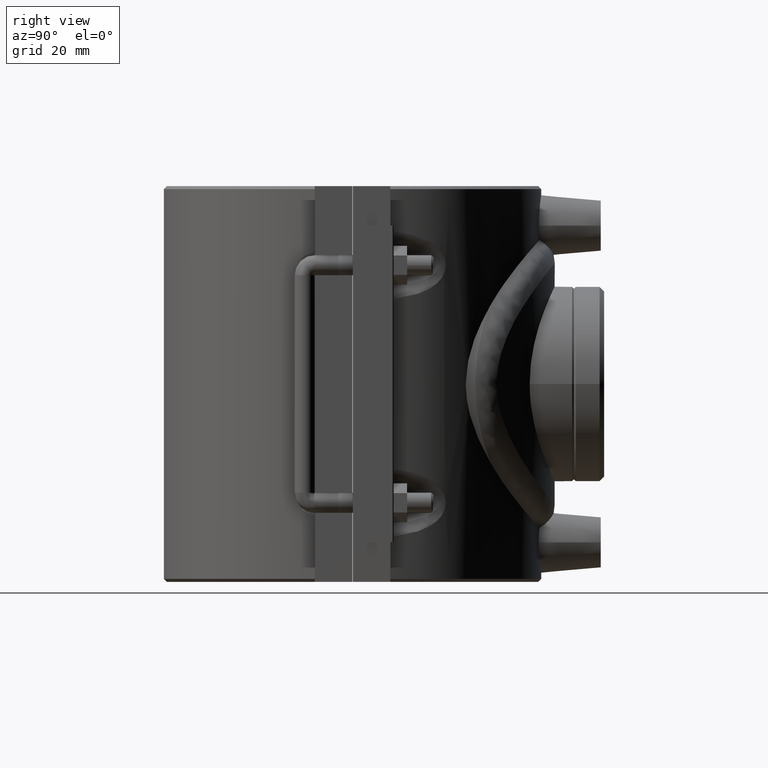
[diagram: clean part render]
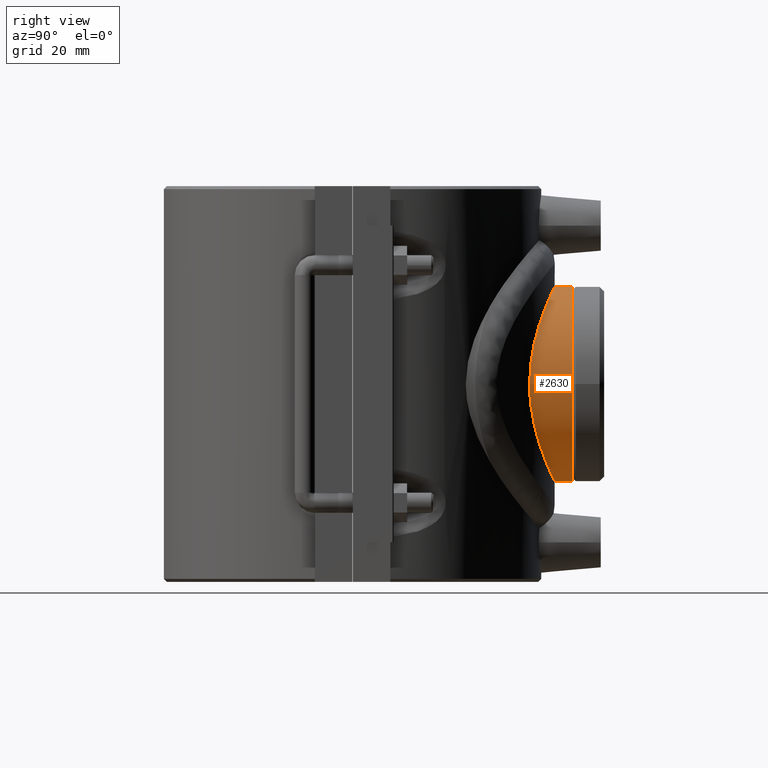
[diagram: same view with one face highlighted and labeled with its STEP entity id]
A machine part, right view. The second image highlights one B-rep face of the part: STEP entity #2630.
In plain terms, the highlighted cylindrical surface (bore or boss wall) has radius 29.1492 mm, axis along (0, -1, 0).
Its self-contained STEP definition (entity closure, byte-faithful):
#88=CYLINDRICAL_SURFACE('',#2851,29.14925);
#137=FACE_BOUND('',#524,.T.);
#210=B_SPLINE_CURVE_WITH_KNOTS('',3,(#5490,#5491,#5492,#5493,#5494,#5495,
#5496,#5497,#5498,#5499,#5500,#5501,#5502,#5503,#5504,#5505,#5506,#5507,
#5508,#5509,#5510,#5511,#5512,#5513,#5514,#5515,#5516,#5517,#5518,#5519,
#5520,#5521,#5522,#5523,#5524,#5525,#5526,#5527,#5528,#5529,#5530,#5531,
#5532,#5533,#5534,#5535,#5536,#5537,#5538,#5539,#5540,#5541,#5542,#5543,
#5544,#5545,#5546,#5547,#5548,#5549,#5550,#5551,#5552,#5553,#5554,#5555),
 .UNSPECIFIED.,.T.,.F.,(4,2,2,2,2,2,2,2,2,2,2,2,2,2,2,2,2,2,2,2,2,2,2,2,
2,2,2,2,2,2,2,2,4),(0.,0.560052998741934,1.12010599748387,1.6801589962258,
2.24021199496774,2.79895552299949,3.35769905103125,3.916442579063,4.47518610709475,
5.03392963512651,5.59267316315826,6.15141669119002,6.71016021922177,7.27021321796371,
7.83026621670564,8.39031921544758,8.95037221418951,9.51042521293144,10.0704782116734,
10.6305312104153,11.1905842091572,11.749327737189,12.3080712652208,12.8668147932525,
13.4255583212843,13.984301849316,14.5430453773478,15.1017889053795,15.6605324334113,
16.2205854321532,16.7806384308952,17.3406914296371,17.900744428379),
 .UNSPECIFIED.);
#331=FACE_OUTER_BOUND('',#523,.T.);
#523=EDGE_LOOP('',(#2271));
#524=EDGE_LOOP('',(#2272));
#1049=CIRCLE('',#2850,29.14925);
#1297=VERTEX_POINT('',#5486);
#1298=VERTEX_POINT('',#5489);
#1645=EDGE_CURVE('',#1297,#1297,#1049,.T.);
#1646=EDGE_CURVE('',#1298,#1298,#210,.T.);
#2271=ORIENTED_EDGE('',*,*,#1646,.F.);
#2272=ORIENTED_EDGE('',*,*,#1645,.F.);
#2630=ADVANCED_FACE('',(#331,#137),#88,.T.);
#2850=AXIS2_PLACEMENT_3D('',#5487,#3439,#3440);
#2851=AXIS2_PLACEMENT_3D('',#5488,#3441,#3442);
#3439=DIRECTION('center_axis',(0.,1.,0.));
#3440=DIRECTION('ref_axis',(-1.,0.,0.));
#3441=DIRECTION('center_axis',(0.,-1.,0.));
#3442=DIRECTION('ref_axis',(1.,0.,0.));
#5486=CARTESIAN_POINT('',(29.14925,65.45,-3.5697535710046E-15));
#5487=CARTESIAN_POINT('Origin',(0.,65.45,0.));
#5488=CARTESIAN_POINT('Origin',(0.,75.,0.));
#5489=CARTESIAN_POINT('',(-29.14925,52.7864681943915,-5.55111512312578E-16));
#5490=CARTESIAN_POINT('Ctrl Pts',(-29.14925,52.7864681943915,-5.55111512312578E-16));
#5491=CARTESIAN_POINT('Ctrl Pts',(-29.14925,52.7864681943915,-1.86684332913978));
#5492=CARTESIAN_POINT('Ctrl Pts',(-28.96707836032,52.8883872398851,-3.78479585788135));
#5493=CARTESIAN_POINT('Ctrl Pts',(-28.2135154789816,53.2941899005517,-7.57719298363822));
#5494=CARTESIAN_POINT('Ctrl Pts',(-27.6424222104898,53.5974319710266,-9.45176540294394));
#5495=CARTESIAN_POINT('Ctrl Pts',(-26.1467351227172,54.3427669976164,-13.0302642126263));
#5496=CARTESIAN_POINT('Ctrl Pts',(-25.2209521925411,54.7845080489122,-14.7376220996934));
#5497=CARTESIAN_POINT('Ctrl Pts',(-23.0927687557541,55.7150139777928,-17.8890459860959));
#5498=CARTESIAN_POINT('Ctrl Pts',(-21.8900831035176,56.2028907564882,-19.3331815794863));
#5499=CARTESIAN_POINT('Ctrl Pts',(-19.3361707498524,57.1318170930259,-21.8870939331515));
#5500=CARTESIAN_POINT('Ctrl Pts',(-17.8935079463079,57.6072260622788,-23.0893611122786));
#5501=CARTESIAN_POINT('Ctrl Pts',(-14.7414522292465,58.4932449718216,-25.2187590808109));
#5502=CARTESIAN_POINT('Ctrl Pts',(-13.0319766369827,58.9031613561613,-26.1460560048751));
#5503=CARTESIAN_POINT('Ctrl Pts',(-9.44907243978142,59.5829662386256,-27.643511149529));
#5504=CARTESIAN_POINT('Ctrl Pts',(-7.57226318378987,59.8529881630695,-28.2148642538166));
#5505=CARTESIAN_POINT('Ctrl Pts',(-3.7790014840046,60.2116144075536,-28.9678594719004));
#5506=CARTESIAN_POINT('Ctrl Pts',(-1.86247842677252,60.3,-29.14925));
#5507=CARTESIAN_POINT('Ctrl Pts',(1.86247842677251,60.3,-29.14925));
#5508=CARTESIAN_POINT('Ctrl Pts',(3.77900148400458,60.2116144075536,-28.9678594719004));
#5509=CARTESIAN_POINT('Ctrl Pts',(7.57226318378986,59.8529881630695,-28.2148642538166));
#5510=CARTESIAN_POINT('Ctrl Pts',(9.4490724397814,59.5829662386256,-27.643511149529));
#5511=CARTESIAN_POINT('Ctrl Pts',(13.0319766369827,58.9031613561613,-26.1460560048751));
#5512=CARTESIAN_POINT('Ctrl Pts',(14.7414522292465,58.4932449718216,-25.2187590808109));
#5513=CARTESIAN_POINT('Ctrl Pts',(17.8935079463079,57.6072260622788,-23.0893611122786));
#5514=CARTESIAN_POINT('Ctrl Pts',(19.3361707498524,57.131817093026,-21.8870939331515));
#5515=CARTESIAN_POINT('Ctrl Pts',(21.8900831035176,56.2028907564882,-19.3331815794864));
#5516=CARTESIAN_POINT('Ctrl Pts',(23.0927687557541,55.7150139777928,-17.8890459860959));
#5517=CARTESIAN_POINT('Ctrl Pts',(25.2209521925411,54.7845080489122,-14.7376220996934));
#5518=CARTESIAN_POINT('Ctrl Pts',(26.1467351227172,54.3427669976164,-13.0302642126264));
#5519=CARTESIAN_POINT('Ctrl Pts',(27.6424222104898,53.5974319710266,-9.45176540294395));
#5520=CARTESIAN_POINT('Ctrl Pts',(28.2135154789816,53.2941899005517,-7.57719298363822));
#5521=CARTESIAN_POINT('Ctrl Pts',(28.96707836032,52.8883872398851,-3.78479585788135));
#5522=CARTESIAN_POINT('Ctrl Pts',(29.14925,52.7864681943915,-1.86684332913978));
#5523=CARTESIAN_POINT('Ctrl Pts',(29.14925,52.7864681943915,1.86684332913978));
#5524=CARTESIAN_POINT('Ctrl Pts',(28.96707836032,52.8883872398851,3.78479585788135));
#5525=CARTESIAN_POINT('Ctrl Pts',(28.2135154789816,53.2941899005517,7.57719298363822));
#5526=CARTESIAN_POINT('Ctrl Pts',(27.6424222104898,53.5974319710266,9.45176540294394));
#5527=CARTESIAN_POINT('Ctrl Pts',(26.1467351227172,54.3427669976164,13.0302642126263));
#5528=CARTESIAN_POINT('Ctrl Pts',(25.2209521925411,54.7845080489122,14.7376220996934));
#5529=CARTESIAN_POINT('Ctrl Pts',(23.0927687557541,55.7150139777928,17.8890459860959));
#5530=CARTESIAN_POINT('Ctrl Pts',(21.8900831035176,56.2028907564882,19.3331815794863));
#5531=CARTESIAN_POINT('Ctrl Pts',(19.3361707498524,57.131817093026,21.8870939331515));
#5532=CARTESIAN_POINT('Ctrl Pts',(17.8935079463079,57.6072260622788,23.0893611122786));
#5533=CARTESIAN_POINT('Ctrl Pts',(14.7414522292466,58.4932449718216,25.2187590808109));
#5534=CARTESIAN_POINT('Ctrl Pts',(13.0319766369827,58.9031613561613,26.1460560048751));
#5535=CARTESIAN_POINT('Ctrl Pts',(9.44907243978143,59.5829662386256,27.643511149529));
#5536=CARTESIAN_POINT('Ctrl Pts',(7.57226318378988,59.8529881630695,28.2148642538166));
#5537=CARTESIAN_POINT('Ctrl Pts',(3.7790014840046,60.2116144075536,28.9678594719004));
#5538=CARTESIAN_POINT('Ctrl Pts',(1.86247842677253,60.3,29.14925));
#5539=CARTESIAN_POINT('Ctrl Pts',(-1.86247842677251,60.3,29.14925));
#5540=CARTESIAN_POINT('Ctrl Pts',(-3.77900148400458,60.2116144075536,28.9678594719004));
#5541=CARTESIAN_POINT('Ctrl Pts',(-7.57226318378985,59.8529881630695,28.2148642538166));
#5542=CARTESIAN_POINT('Ctrl Pts',(-9.44907243978139,59.5829662386256,27.643511149529));
#5543=CARTESIAN_POINT('Ctrl Pts',(-13.0319766369827,58.9031613561613,26.1460560048751));
#5544=CARTESIAN_POINT('Ctrl Pts',(-14.7414522292465,58.4932449718216,25.2187590808109));
#5545=CARTESIAN_POINT('Ctrl Pts',(-17.8935079463078,57.6072260622788,23.0893611122786));
#5546=CARTESIAN_POINT('Ctrl Pts',(-19.3361707498524,57.131817093026,21.8870939331516));
#5547=CARTESIAN_POINT('Ctrl Pts',(-21.8900831035176,56.2028907564882,19.3331815794864));
#5548=CARTESIAN_POINT('Ctrl Pts',(-23.092768755754,55.7150139777928,17.889045986096));
#5549=CARTESIAN_POINT('Ctrl Pts',(-25.2209521925411,54.7845080489122,14.7376220996934));
#5550=CARTESIAN_POINT('Ctrl Pts',(-26.1467351227172,54.3427669976164,13.0302642126264));
#5551=CARTESIAN_POINT('Ctrl Pts',(-27.6424222104898,53.5974319710266,9.45176540294394));
#5552=CARTESIAN_POINT('Ctrl Pts',(-28.2135154789816,53.2941899005517,7.57719298363822));
#5553=CARTESIAN_POINT('Ctrl Pts',(-28.96707836032,52.8883872398851,3.78479585788135));
#5554=CARTESIAN_POINT('Ctrl Pts',(-29.14925,52.7864681943915,1.86684332913978));
#5555=CARTESIAN_POINT('Ctrl Pts',(-29.14925,52.7864681943915,-5.55111512312578E-16));